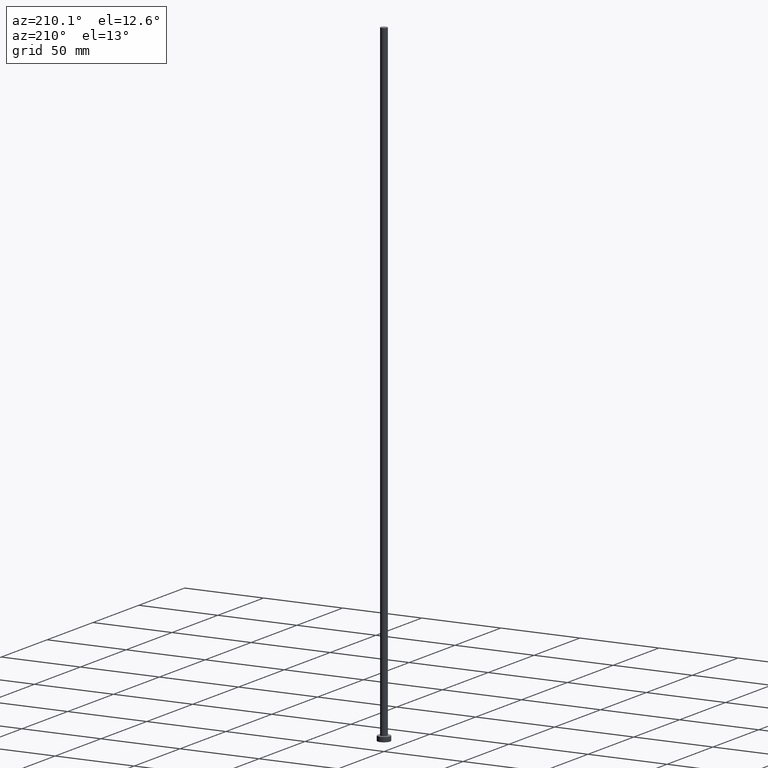
[diagram: clean part render]
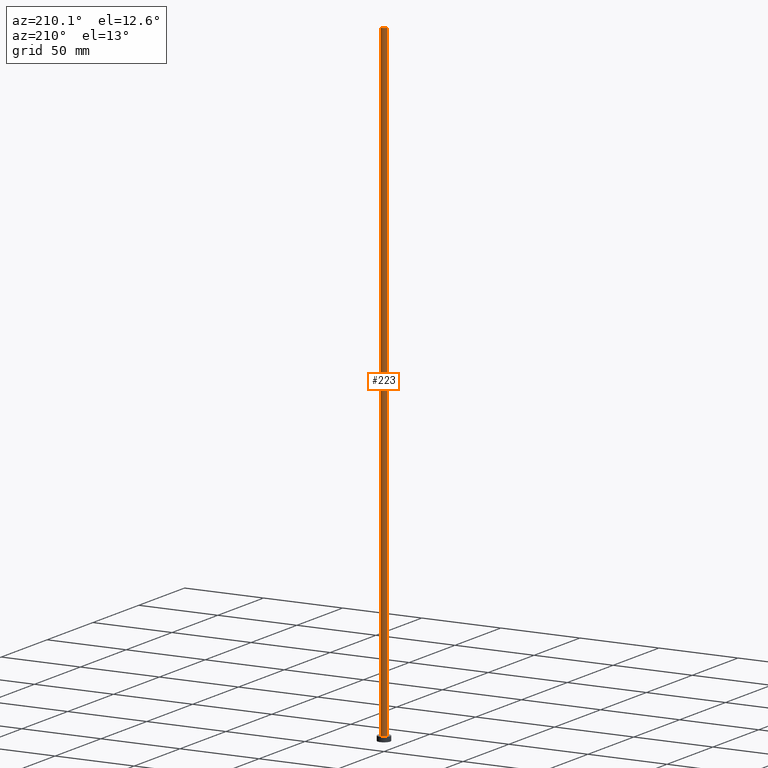
[diagram: same view with one face highlighted and labeled with its STEP entity id]
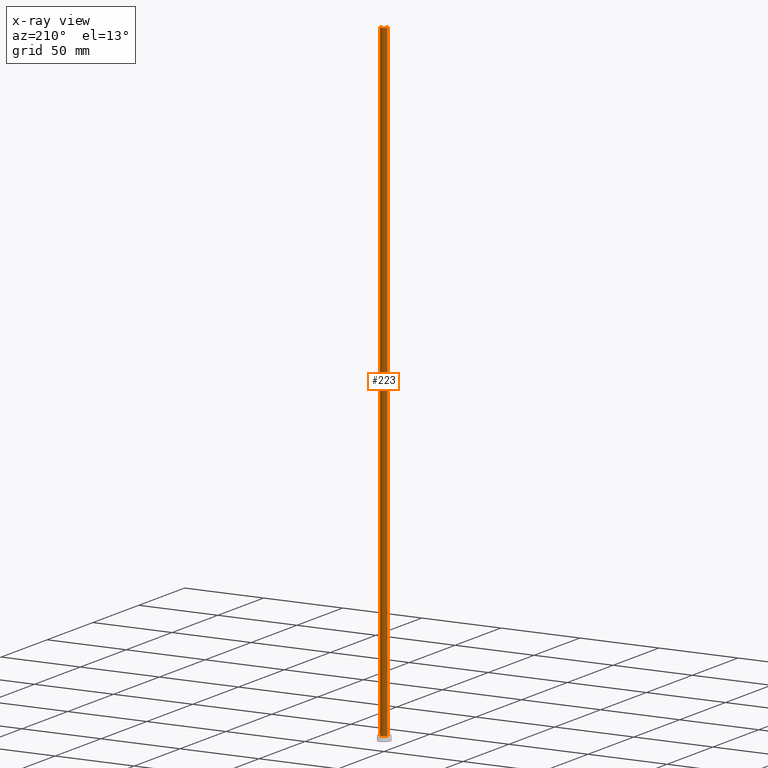
[diagram: x-ray of the same camera — body ghosted, the highlighted face saturated]
A machine part, auxiliary view. The second image highlights one B-rep face of the part: STEP entity #223.
The next image is the same camera in x-ray: the body ghosted, the highlighted face saturated — about 0% of this face is hidden behind the body in this view.
In plain terms, the highlighted cylindrical surface (edge-blend (fillet) strip) has radius 2.1 mm, axis along (-0, -0, -1).
Its self-contained STEP definition (entity closure, byte-faithful):
#6 = FACE_OUTER_BOUND ( 'NONE', #84, .T. ) ;
#8 = AXIS2_PLACEMENT_3D ( 'NONE', #254, #186, #27 ) ;
#9 = CARTESIAN_POINT ( 'NONE',  ( -2.100000000000000089, 0.000000000000000000, 400.0000000000000000 ) ) ;
#10 = ORIENTED_EDGE ( 'NONE', *, *, #139, .T. ) ;
#27 = DIRECTION ( 'NONE',  ( -1.000000000000000000, 0.000000000000000000, 0.000000000000000000 ) ) ;
#51 = CYLINDRICAL_SURFACE ( 'NONE', #8, 2.100000000000000089 ) ;
#60 = AXIS2_PLACEMENT_3D ( 'NONE', #159, #65, #192 ) ;
#62 = CARTESIAN_POINT ( 'NONE',  ( -2.100000000000000089, 0.000000000000000000, 3.000000000000000000 ) ) ;
#65 = DIRECTION ( 'NONE',  ( 0.000000000000000000, 0.000000000000000000, 1.000000000000000000 ) ) ;
#84 = EDGE_LOOP ( 'NONE', ( #88, #226, #10, #146 ) ) ;
#88 = ORIENTED_EDGE ( 'NONE', *, *, #118, .F. ) ;
#92 = CARTESIAN_POINT ( 'NONE',  ( -2.100000000000000089, 0.000000000000000000, 400.0000000000000000 ) ) ;
#97 = EDGE_CURVE ( 'NONE', #243, #188, #195, .T. ) ;
#111 = AXIS2_PLACEMENT_3D ( 'NONE', #247, #231, #174 ) ;
#117 = CIRCLE ( 'NONE', #111, 2.100000000000000089 ) ;
#118 = EDGE_CURVE ( 'NONE', #243, #245, #167, .T. ) ;
#119 = CARTESIAN_POINT ( 'NONE',  ( 2.100000000000000089, 2.571758278209441957E-16, 400.0000000000000000 ) ) ;
#121 = EDGE_CURVE ( 'NONE', #245, #184, #129, .T. ) ;
#127 = VECTOR ( 'NONE', #173, 1000.000000000000000 ) ;
#129 = LINE ( 'NONE', #92, #127 ) ;
#139 = EDGE_CURVE ( 'NONE', #188, #184, #117, .T. ) ;
#146 = ORIENTED_EDGE ( 'NONE', *, *, #121, .F. ) ;
#159 = CARTESIAN_POINT ( 'NONE',  ( 0.000000000000000000, 0.000000000000000000, 400.0000000000000000 ) ) ;
#167 = CIRCLE ( 'NONE', #60, 2.100000000000000089 ) ;
#173 = DIRECTION ( 'NONE',  ( -0.000000000000000000, -0.000000000000000000, -1.000000000000000000 ) ) ;
#174 = DIRECTION ( 'NONE',  ( 1.000000000000000000, 0.000000000000000000, 0.000000000000000000 ) ) ;
#177 = VECTOR ( 'NONE', #234, 1000.000000000000000 ) ;
#184 = VERTEX_POINT ( 'NONE', #62 ) ;
#186 = DIRECTION ( 'NONE',  ( -0.000000000000000000, -0.000000000000000000, -1.000000000000000000 ) ) ;
#188 = VERTEX_POINT ( 'NONE', #213 ) ;
#192 = DIRECTION ( 'NONE',  ( 1.000000000000000000, 0.000000000000000000, 0.000000000000000000 ) ) ;
#195 = LINE ( 'NONE', #197, #177 ) ;
#197 = CARTESIAN_POINT ( 'NONE',  ( 2.100000000000000089, 2.571758278209441957E-16, 400.0000000000000000 ) ) ;
#213 = CARTESIAN_POINT ( 'NONE',  ( 2.100000000000000089, 2.571758278209441957E-16, 3.000000000000000000 ) ) ;
#223 = ADVANCED_FACE ( 'NONE', ( #6 ), #51, .T. ) ;
#226 = ORIENTED_EDGE ( 'NONE', *, *, #97, .T. ) ;
#231 = DIRECTION ( 'NONE',  ( 0.000000000000000000, 0.000000000000000000, 1.000000000000000000 ) ) ;
#234 = DIRECTION ( 'NONE',  ( -0.000000000000000000, -0.000000000000000000, -1.000000000000000000 ) ) ;
#243 = VERTEX_POINT ( 'NONE', #119 ) ;
#245 = VERTEX_POINT ( 'NONE', #9 ) ;
#247 = CARTESIAN_POINT ( 'NONE',  ( 0.000000000000000000, 0.000000000000000000, 3.000000000000000000 ) ) ;
#254 = CARTESIAN_POINT ( 'NONE',  ( 0.000000000000000000, 0.000000000000000000, 400.0000000000000000 ) ) ;